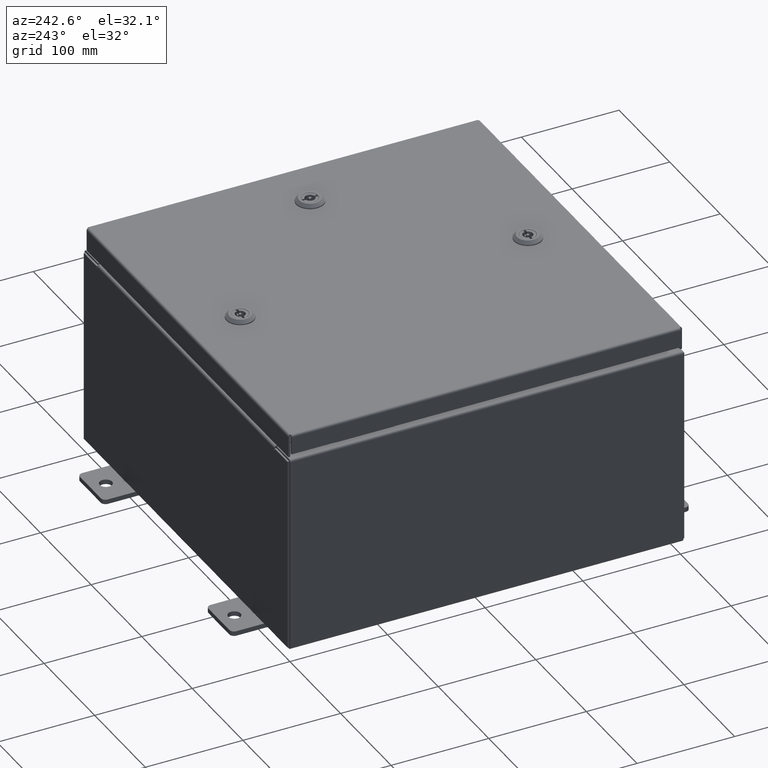
[diagram: clean part render]
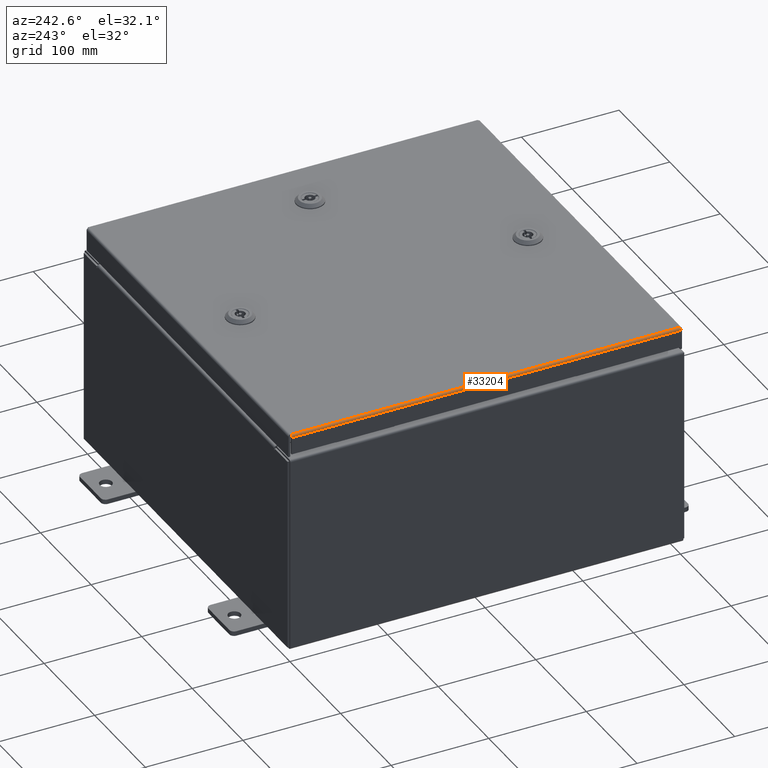
[diagram: same view with one face highlighted and labeled with its STEP entity id]
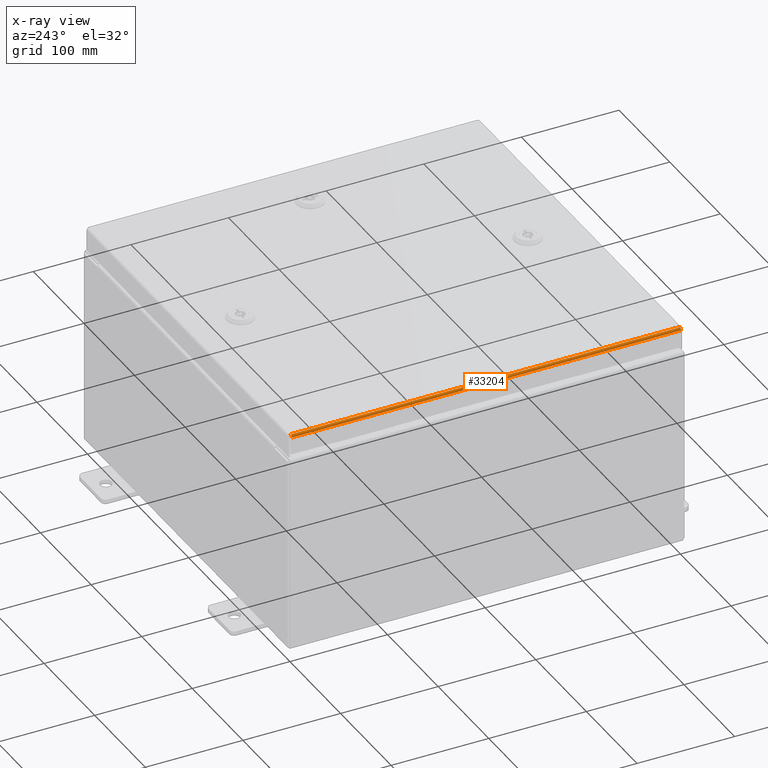
[diagram: x-ray of the same camera — body ghosted, the highlighted face saturated]
A machine part, auxiliary view. The second image highlights one B-rep face of the part: STEP entity #33204.
The next image is the same camera in x-ray: the body ghosted, the highlighted face saturated — about 0% of this face is hidden behind the body in this view.
In plain terms, the highlighted cylindrical surface (edge-blend (fillet) strip) has radius 2.2276 mm, axis along (0, 1, 0).
Its self-contained STEP definition (entity closure, byte-faithful):
#384 = CARTESIAN_POINT ( 'NONE',  ( -7.903695747341801700, -7.849324110156780800, -0.01756921792167976500 ) ) ;
#3773 = DIRECTION ( 'NONE',  ( 0.0000000000000000000, -1.000000000000000000, 0.0000000000000000000 ) ) ;
#4078 = B_SPLINE_CURVE_WITH_KNOTS ( 'NONE', 3,
 ( #47997, #14230, #28734, #62567, #33635, #4724, #38508, #9581, #43356, #14435 ),
 .UNSPECIFIED., .F., .F.,
 ( 4, 2, 2, 2, 4 ),
 ( 0.0000000000000000000, 0.2500000000000000000, 0.5000000000000000000, 0.7500000000000000000, 1.000000000000000000 ),
 .UNSPECIFIED. ) ;
#4305 = CARTESIAN_POINT ( 'NONE',  ( -7.926431066258668800, -7.849038576250846300, -0.04353261542147222900 ) ) ;
#4662 = VERTEX_POINT ( 'NONE', #28874 ) ;
#4724 = CARTESIAN_POINT ( 'NONE',  ( -7.903695747341800800, 7.849324110156779900, -0.01756921792167976500 ) ) ;
#5933 = CARTESIAN_POINT ( 'NONE',  ( -7.935217403743813200, -7.848848220313557900, -0.06474471054169118900 ) ) ;
#9066 = B_SPLINE_CURVE_WITH_KNOTS ( 'NONE', 3,
 ( #53313, #19561, #58141, #29229, #384, #52828, #4305, #5933, #39750, #10811 ),
 .UNSPECIFIED., .F., .F.,
 ( 4, 2, 2, 2, 4 ),
 ( 0.0000000000000000000, 0.2500000000000000000, 0.5000000000000000000, 0.7500000000000000000, 1.000000000000000000 ),
 .UNSPECIFIED. ) ;
#9581 = CARTESIAN_POINT ( 'NONE',  ( -7.872755289458309500, 7.849609644062711700, -0.002282596256188923800 ) ) ;
#10227 = CYLINDRICAL_SURFACE ( 'NONE', #55169, 0.08770000000000026400 ) ;
#10811 = CARTESIAN_POINT ( 'NONE',  ( -7.937500000000000000, -7.848657864376269400, -0.08770000000000007000 ) ) ;
#10972 = VECTOR ( 'NONE', #3773, 39.37007874015748100 ) ;
#13279 = FACE_OUTER_BOUND ( 'NONE', #60562, .T. ) ;
#13700 = EDGE_CURVE ( 'NONE', #22940, #59062, #61889, .T. ) ;
#14032 = CARTESIAN_POINT ( 'NONE',  ( -7.937500000000000000, 7.848657864376270300, -0.08770000000000004200 ) ) ;
#14230 = CARTESIAN_POINT ( 'NONE',  ( -7.937499999999999100, 7.848753042344911000, -0.07622009684500732900 ) ) ;
#14435 = CARTESIAN_POINT ( 'NONE',  ( -7.849800000000000100, 7.849800000000000100, -2.048885995248197400E-016 ) ) ;
#16531 = DIRECTION ( 'NONE',  ( -1.000000000000000000, 0.0000000000000000000, 3.114992011019675100E-015 ) ) ;
#19561 = CARTESIAN_POINT ( 'NONE',  ( -7.861279903154991400, -7.849704822031355900, -2.043883832173860400E-016 ) ) ;
#19629 = CARTESIAN_POINT ( 'NONE',  ( -7.937500000000000000, -7.937500000000000000, -0.08770000000000004200 ) ) ;
#19970 = CARTESIAN_POINT ( 'NONE',  ( -7.937500000000000000, -7.848657864376269400, -0.08770000000000007000 ) ) ;
#21374 = DIRECTION ( 'NONE',  ( -0.0000000000000000000, 1.000000000000000000, -0.0000000000000000000 ) ) ;
#22940 = VERTEX_POINT ( 'NONE', #14032 ) ;
#23334 = VECTOR ( 'NONE', #48555, 39.37007874015748100 ) ;
#23773 = LINE ( 'NONE', #42222, #10972 ) ;
#28734 = CARTESIAN_POINT ( 'NONE',  ( -7.935217403743812300, 7.848848220313558800, -0.06474471054169118900 ) ) ;
#28874 = CARTESIAN_POINT ( 'NONE',  ( -7.849800000000000100, 7.849800000000000100, -2.048885995248197400E-016 ) ) ;
#29099 = ORIENTED_EDGE ( 'NONE', *, *, #54098, .F. ) ;
#29229 = CARTESIAN_POINT ( 'NONE',  ( -7.893967384578527200, -7.849419288125424100, -0.01106893374133176100 ) ) ;
#33204 = ADVANCED_FACE ( 'NONE', ( #13279 ), #10227, .T. ) ;
#33635 = CARTESIAN_POINT ( 'NONE',  ( -7.919930782078321100, 7.849133754219491400, -0.03380425265820009200 ) ) ;
#38508 = CARTESIAN_POINT ( 'NONE',  ( -7.893967384578529000, 7.849419288125424100, -0.01106893374133176100 ) ) ;
#39750 = CARTESIAN_POINT ( 'NONE',  ( -7.937500000000000000, -7.848753042344914600, -0.07622009684500735700 ) ) ;
#40668 = ORIENTED_EDGE ( 'NONE', *, *, #58594, .F. ) ;
#42222 = CARTESIAN_POINT ( 'NONE',  ( -7.849800000000000100, 7.849800000000000100, -2.048885995248197400E-016 ) ) ;
#42554 = ORIENTED_EDGE ( 'NONE', *, *, #13700, .T. ) ;
#43356 = CARTESIAN_POINT ( 'NONE',  ( -7.861279903154993100, 7.849704822031356800, -2.037547758946368100E-016 ) ) ;
#46537 = ORIENTED_EDGE ( 'NONE', *, *, #61856, .F. ) ;
#47997 = CARTESIAN_POINT ( 'NONE',  ( -7.937500000000000000, 7.848657864376270300, -0.08770000000000004200 ) ) ;
#48555 = DIRECTION ( 'NONE',  ( 3.654886874889599300E-031, -1.000000000000000000, -1.077392013397602500E-045 ) ) ;
#52490 = VERTEX_POINT ( 'NONE', #56777 ) ;
#52828 = CARTESIAN_POINT ( 'NONE',  ( -7.919930782078321100, -7.849133754219493200, -0.03380425265820009900 ) ) ;
#53313 = CARTESIAN_POINT ( 'NONE',  ( -7.849800000000000100, -7.849800000000000100, -2.219626494852214000E-016 ) ) ;
#54098 = EDGE_CURVE ( 'NONE', #22940, #4662, #4078, .T. ) ;
#55146 = CARTESIAN_POINT ( 'NONE',  ( -7.849800000000000100, 7.849800000000000100, -0.08770000000000030500 ) ) ;
#55169 = AXIS2_PLACEMENT_3D ( 'NONE', #55146, #21374, #16531 ) ;
#56777 = CARTESIAN_POINT ( 'NONE',  ( -7.849800000000000100, -7.849800000000000100, -2.219626494852214000E-016 ) ) ;
#58141 = CARTESIAN_POINT ( 'NONE',  ( -7.872755289458310400, -7.849609644062715200, -0.002282596256188924700 ) ) ;
#58594 = EDGE_CURVE ( 'NONE', #52490, #59062, #9066, .T. ) ;
#59062 = VERTEX_POINT ( 'NONE', #19970 ) ;
#60562 = EDGE_LOOP ( 'NONE', ( #46537, #29099, #42554, #40668 ) ) ;
#61856 = EDGE_CURVE ( 'NONE', #4662, #52490, #23773, .T. ) ;
#61889 = LINE ( 'NONE', #19629, #23334 ) ;
#62567 = CARTESIAN_POINT ( 'NONE',  ( -7.926431066258667900, 7.849038576250843700, -0.04353261542147222200 ) ) ;